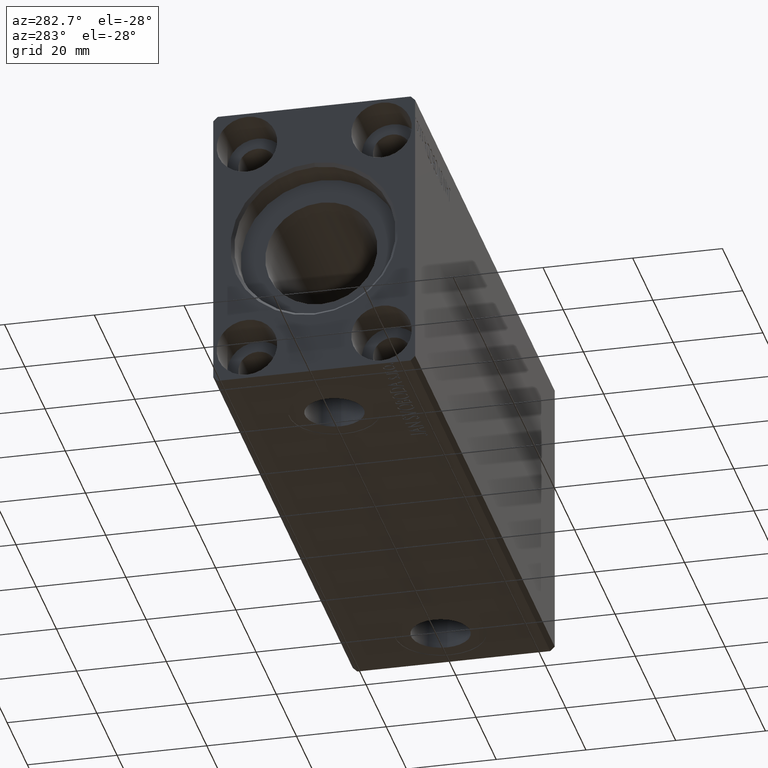
[diagram: clean part render]
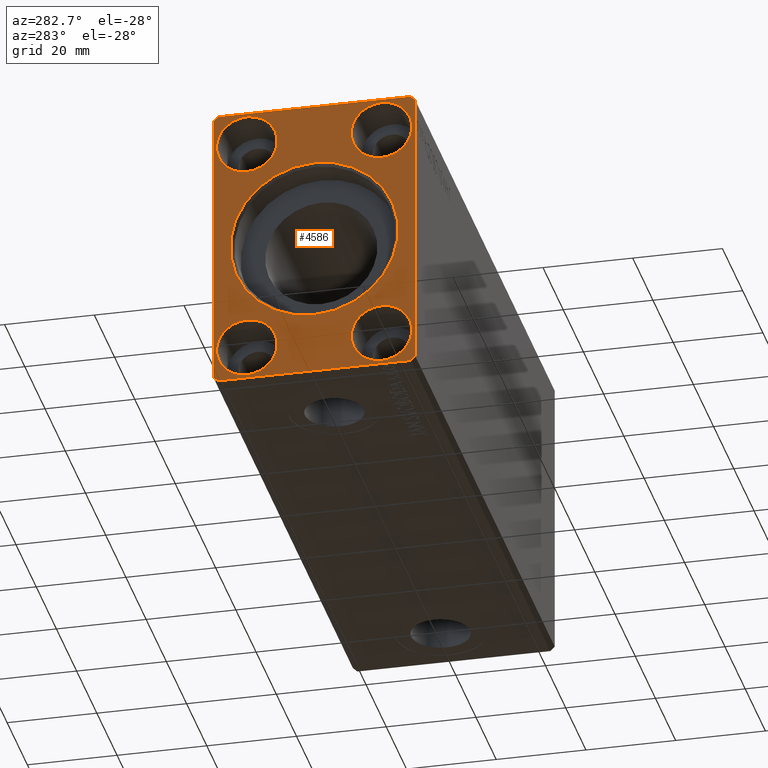
[diagram: same view with one face highlighted and labeled with its STEP entity id]
A machine part, auxiliary view. The second image highlights one B-rep face of the part: STEP entity #4586.
In plain terms, the highlighted planar face has unit normal (1, 0, 0).
Its self-contained STEP definition (entity closure, byte-faithful):
#293 = CARTESIAN_POINT ( 'NONE',  ( 0.000000000000000000, -21.50000000000001776, -32.50000000000000711 ) ) ;
#372 = DIRECTION ( 'NONE',  ( 0.000000000000000000, 0.000000000000000000, 1.000000000000000000 ) ) ;
#426 = LINE ( 'NONE', #39424, #36034 ) ;
#658 = DIRECTION ( 'NONE',  ( 1.000000000000000000, -0.000000000000000000, -0.000000000000000000 ) ) ;
#667 = EDGE_CURVE ( 'NONE', #34315, #23519, #35061, .T. ) ;
#1442 = EDGE_CURVE ( 'NONE', #42013, #17482, #17162, .T. ) ;
#1519 = CARTESIAN_POINT ( 'NONE',  ( 0.000000000000000000, -21.50000000000001421, 32.50000000000000000 ) ) ;
#1570 = LINE ( 'NONE', #40776, #37666 ) ;
#1703 = CARTESIAN_POINT ( 'NONE',  ( 0.000000000000000000, 21.49999999999999645, 32.50000000000000000 ) ) ;
#2021 = EDGE_CURVE ( 'NONE', #8766, #6826, #10322, .T. ) ;
#2063 = VERTEX_POINT ( 'NONE', #293 ) ;
#2259 = EDGE_LOOP ( 'NONE', ( #27924, #8937 ) ) ;
#2990 = EDGE_CURVE ( 'NONE', #9179, #22917, #8030, .T. ) ;
#3190 = DIRECTION ( 'NONE',  ( 1.000000000000000000, -0.000000000000000000, -0.000000000000000000 ) ) ;
#3374 = ORIENTED_EDGE ( 'NONE', *, *, #30129, .T. ) ;
#3428 = ORIENTED_EDGE ( 'NONE', *, *, #12923, .F. ) ;
#3510 = AXIS2_PLACEMENT_3D ( 'NONE', #39263, #9754, #16853 ) ;
#3716 = FACE_BOUND ( 'NONE', #21073, .T. ) ;
#3857 = CARTESIAN_POINT ( 'NONE',  ( 0.000000000000000000, 15.00000000000000000, -25.00000000000000000 ) ) ;
#4049 = CIRCLE ( 'NONE', #39136, 6.749999999999999112 ) ;
#4141 = DIRECTION ( 'NONE',  ( 1.000000000000000000, 0.000000000000000000, 0.000000000000000000 ) ) ;
#4303 = EDGE_CURVE ( 'NONE', #6065, #21740, #10377, .T. ) ;
#4586 = ADVANCED_FACE ( 'NONE', ( #36033, #6526, #3716, #12975, #23745, #23100 ), #26114, .F. ) ;
#4603 = CARTESIAN_POINT ( 'NONE',  ( 0.000000000000000000, 21.49999999999999645, 32.50000000000000000 ) ) ;
#4771 = AXIS2_PLACEMENT_3D ( 'NONE', #17636, #30776, #10128 ) ;
#4838 = EDGE_CURVE ( 'NONE', #11402, #16110, #39807, .T. ) ;
#4899 = VECTOR ( 'NONE', #23424, 1000.000000000000000 ) ;
#5030 = DIRECTION ( 'NONE',  ( 0.000000000000000000, 0.000000000000000000, 1.000000000000000000 ) ) ;
#5242 = CARTESIAN_POINT ( 'NONE',  ( 0.000000000000000000, 15.00000000000000000, -25.00000000000000000 ) ) ;
#5428 = CARTESIAN_POINT ( 'NONE',  ( 0.000000000000000000, -15.00000000000000000, 25.00000000000000000 ) ) ;
#6065 = VERTEX_POINT ( 'NONE', #19241 ) ;
#6147 = ORIENTED_EDGE ( 'NONE', *, *, #11995, .F. ) ;
#6162 = CARTESIAN_POINT ( 'NONE',  ( 0.000000000000000000, -15.00000000000000000, -18.25000000000000355 ) ) ;
#6178 = DIRECTION ( 'NONE',  ( 0.000000000000000000, 1.000000000000000000, 1.613696256722610912E-16 ) ) ;
#6431 = CARTESIAN_POINT ( 'NONE',  ( 0.000000000000000000, -15.00000000000000000, -25.00000000000000000 ) ) ;
#6526 = FACE_BOUND ( 'NONE', #30281, .T. ) ;
#6826 = VERTEX_POINT ( 'NONE', #9663 ) ;
#7707 = AXIS2_PLACEMENT_3D ( 'NONE', #5428, #25438, #38591 ) ;
#8030 = LINE ( 'NONE', #27413, #41287 ) ;
#8046 = CARTESIAN_POINT ( 'NONE',  ( 0.000000000000000000, -15.00000000000000000, 18.24999999999999645 ) ) ;
#8189 = EDGE_CURVE ( 'NONE', #42054, #9179, #31029, .T. ) ;
#8417 = LINE ( 'NONE', #32241, #10579 ) ;
#8766 = VERTEX_POINT ( 'NONE', #27063 ) ;
#8937 = ORIENTED_EDGE ( 'NONE', *, *, #667, .T. ) ;
#9179 = VERTEX_POINT ( 'NONE', #19598 ) ;
#9294 = EDGE_CURVE ( 'NONE', #22917, #2063, #426, .T. ) ;
#9434 = VERTEX_POINT ( 'NONE', #1703 ) ;
#9663 = CARTESIAN_POINT ( 'NONE',  ( 0.000000000000000000, 0.000000000000000000, 18.69999999999999574 ) ) ;
#9754 = DIRECTION ( 'NONE',  ( 1.000000000000000000, 0.000000000000000000, 0.000000000000000000 ) ) ;
#10128 = DIRECTION ( 'NONE',  ( 0.000000000000000000, 0.000000000000000000, -1.000000000000000000 ) ) ;
#10297 = CARTESIAN_POINT ( 'NONE',  ( 0.000000000000000000, 22.49999999999999645, -31.50000000000000000 ) ) ;
#10322 = CIRCLE ( 'NONE', #31659, 18.69999999999999574 ) ;
#10364 = DIRECTION ( 'NONE',  ( 0.000000000000000000, 0.000000000000000000, -1.000000000000000000 ) ) ;
#10377 = CIRCLE ( 'NONE', #42036, 6.749999999999992006 ) ;
#10579 = VECTOR ( 'NONE', #6178, 1000.000000000000000 ) ;
#10883 = DIRECTION ( 'NONE',  ( 0.000000000000000000, 0.000000000000000000, -1.000000000000000000 ) ) ;
#11402 = VERTEX_POINT ( 'NONE', #15857 ) ;
#11583 = ORIENTED_EDGE ( 'NONE', *, *, #41092, .F. ) ;
#11834 = AXIS2_PLACEMENT_3D ( 'NONE', #40757, #4141, #24812 ) ;
#11995 = EDGE_CURVE ( 'NONE', #31665, #11402, #1570, .T. ) ;
#12101 = LINE ( 'NONE', #41623, #30584 ) ;
#12192 = CARTESIAN_POINT ( 'NONE',  ( 0.000000000000000000, 15.00000000000000000, 31.75000000000001421 ) ) ;
#12923 = EDGE_CURVE ( 'NONE', #9434, #42054, #24854, .T. ) ;
#12975 = FACE_OUTER_BOUND ( 'NONE', #39380, .T. ) ;
#13315 = VECTOR ( 'NONE', #14656, 1000.000000000000114 ) ;
#13562 = DIRECTION ( 'NONE',  ( 0.000000000000000000, 0.7071067811865451302, -0.7071067811865500152 ) ) ;
#14205 = ORIENTED_EDGE ( 'NONE', *, *, #36123, .F. ) ;
#14656 = DIRECTION ( 'NONE',  ( 0.000000000000000000, -0.7071067811865474617, -0.7071067811865474617 ) ) ;
#14741 = CIRCLE ( 'NONE', #25084, 6.750000000000015987 ) ;
#15857 = CARTESIAN_POINT ( 'NONE',  ( 0.000000000000000000, 22.49999999999999645, -31.50000000000000000 ) ) ;
#16110 = VERTEX_POINT ( 'NONE', #23702 ) ;
#16264 = EDGE_CURVE ( 'NONE', #17482, #42013, #4049, .T. ) ;
#16408 = ORIENTED_EDGE ( 'NONE', *, *, #25642, .F. ) ;
#16582 = ORIENTED_EDGE ( 'NONE', *, *, #31839, .F. ) ;
#16725 = CARTESIAN_POINT ( 'NONE',  ( 0.000000000000000000, -15.00000000000000000, -25.00000000000000000 ) ) ;
#16853 = DIRECTION ( 'NONE',  ( 0.000000000000000000, 0.000000000000000000, -1.000000000000000000 ) ) ;
#17162 = CIRCLE ( 'NONE', #39214, 6.749999999999999112 ) ;
#17482 = VERTEX_POINT ( 'NONE', #6162 ) ;
#17634 = CARTESIAN_POINT ( 'NONE',  ( 0.000000000000000000, -21.50000000000001421, 32.50000000000000000 ) ) ;
#17636 = CARTESIAN_POINT ( 'NONE',  ( 0.000000000000000000, 15.00000000000000000, 25.00000000000000000 ) ) ;
#18424 = CARTESIAN_POINT ( 'NONE',  ( 0.000000000000000000, -15.00000000000000000, 31.75000000000000711 ) ) ;
#18649 = VERTEX_POINT ( 'NONE', #18424 ) ;
#18790 = DIRECTION ( 'NONE',  ( 0.000000000000000000, 0.7071067811865474617, 0.7071067811865474617 ) ) ;
#19042 = CARTESIAN_POINT ( 'NONE',  ( 0.000000000000000000, 0.000000000000000000, 0.000000000000000000 ) ) ;
#19241 = CARTESIAN_POINT ( 'NONE',  ( 0.000000000000000000, 15.00000000000000000, -31.74999999999999289 ) ) ;
#19598 = CARTESIAN_POINT ( 'NONE',  ( 0.000000000000000000, -22.50000000000001776, 31.50000000000000000 ) ) ;
#19743 = EDGE_LOOP ( 'NONE', ( #16582, #16408 ) ) ;
#21073 = EDGE_LOOP ( 'NONE', ( #3374, #27117 ) ) ;
#21715 = ORIENTED_EDGE ( 'NONE', *, *, #4303, .F. ) ;
#21740 = VERTEX_POINT ( 'NONE', #22280 ) ;
#21790 = DIRECTION ( 'NONE',  ( 0.000000000000000000, -0.7071067811865474617, 0.7071067811865474617 ) ) ;
#21904 = VERTEX_POINT ( 'NONE', #8046 ) ;
#22280 = CARTESIAN_POINT ( 'NONE',  ( 0.000000000000000000, 15.00000000000000000, -18.25000000000001066 ) ) ;
#22870 = EDGE_LOOP ( 'NONE', ( #26796, #27931 ) ) ;
#22917 = VERTEX_POINT ( 'NONE', #25471 ) ;
#23092 = ORIENTED_EDGE ( 'NONE', *, *, #9294, .F. ) ;
#23100 = FACE_BOUND ( 'NONE', #2259, .T. ) ;
#23424 = DIRECTION ( 'NONE',  ( 0.000000000000000000, 0.000000000000000000, 1.000000000000000000 ) ) ;
#23519 = VERTEX_POINT ( 'NONE', #12192 ) ;
#23542 = CIRCLE ( 'NONE', #28382, 6.750000000000006217 ) ;
#23702 = CARTESIAN_POINT ( 'NONE',  ( 0.000000000000000000, 22.49999999999999645, 31.50000000000000000 ) ) ;
#23745 = FACE_BOUND ( 'NONE', #22870, .T. ) ;
#24099 = CARTESIAN_POINT ( 'NONE',  ( 0.000000000000000000, 21.49999999999999645, -32.50000000000000000 ) ) ;
#24430 = AXIS2_PLACEMENT_3D ( 'NONE', #3857, #30141, #30345 ) ;
#24812 = DIRECTION ( 'NONE',  ( 0.000000000000000000, 0.000000000000000000, -1.000000000000000000 ) ) ;
#24854 = LINE ( 'NONE', #4603, #34927 ) ;
#25084 = AXIS2_PLACEMENT_3D ( 'NONE', #26726, #658, #10364 ) ;
#25438 = DIRECTION ( 'NONE',  ( -1.000000000000000000, 0.000000000000000000, 0.000000000000000000 ) ) ;
#25471 = CARTESIAN_POINT ( 'NONE',  ( 0.000000000000000000, -22.50000000000001421, -31.50000000000000711 ) ) ;
#25642 = EDGE_CURVE ( 'NONE', #21904, #18649, #38676, .T. ) ;
#26050 = ORIENTED_EDGE ( 'NONE', *, *, #2990, .F. ) ;
#26114 = PLANE ( 'NONE',  #3510 ) ;
#26136 = DIRECTION ( 'NONE',  ( 1.000000000000000000, 0.000000000000000000, 0.000000000000000000 ) ) ;
#26219 = ORIENTED_EDGE ( 'NONE', *, *, #8189, .F. ) ;
#26726 = CARTESIAN_POINT ( 'NONE',  ( 0.000000000000000000, 15.00000000000000000, 25.00000000000000000 ) ) ;
#26796 = ORIENTED_EDGE ( 'NONE', *, *, #16264, .T. ) ;
#27063 = CARTESIAN_POINT ( 'NONE',  ( 0.000000000000000000, 2.290089514405549716E-15, -18.69999999999999574 ) ) ;
#27117 = ORIENTED_EDGE ( 'NONE', *, *, #2021, .T. ) ;
#27413 = CARTESIAN_POINT ( 'NONE',  ( 0.000000000000000000, -22.50000000000001776, 31.50000000000000000 ) ) ;
#27626 = DIRECTION ( 'NONE',  ( 0.000000000000000000, 5.507058653894625853E-17, -1.000000000000000000 ) ) ;
#27924 = ORIENTED_EDGE ( 'NONE', *, *, #38998, .T. ) ;
#27931 = ORIENTED_EDGE ( 'NONE', *, *, #1442, .T. ) ;
#28382 = AXIS2_PLACEMENT_3D ( 'NONE', #30513, #36975, #372 ) ;
#29437 = DIRECTION ( 'NONE',  ( 1.000000000000000000, -0.000000000000000000, -0.000000000000000000 ) ) ;
#30129 = EDGE_CURVE ( 'NONE', #6826, #8766, #40040, .T. ) ;
#30141 = DIRECTION ( 'NONE',  ( -1.000000000000000000, 0.000000000000000000, 0.000000000000000000 ) ) ;
#30281 = EDGE_LOOP ( 'NONE', ( #11583, #21715 ) ) ;
#30345 = DIRECTION ( 'NONE',  ( 0.000000000000000000, 0.000000000000000000, 1.000000000000000000 ) ) ;
#30513 = CARTESIAN_POINT ( 'NONE',  ( 0.000000000000000000, -15.00000000000000000, 25.00000000000000000 ) ) ;
#30584 = VECTOR ( 'NONE', #21790, 1000.000000000000114 ) ;
#30677 = CARTESIAN_POINT ( 'NONE',  ( 0.000000000000000000, 15.00000000000000000, 18.24999999999998579 ) ) ;
#30776 = DIRECTION ( 'NONE',  ( 1.000000000000000000, -0.000000000000000000, -0.000000000000000000 ) ) ;
#30919 = ORIENTED_EDGE ( 'NONE', *, *, #4838, .F. ) ;
#31029 = LINE ( 'NONE', #1519, #13315 ) ;
#31515 = DIRECTION ( 'NONE',  ( -1.000000000000000000, 0.000000000000000000, 0.000000000000000000 ) ) ;
#31659 = AXIS2_PLACEMENT_3D ( 'NONE', #19042, #26136, #32386 ) ;
#31665 = VERTEX_POINT ( 'NONE', #24099 ) ;
#31839 = EDGE_CURVE ( 'NONE', #18649, #21904, #23542, .T. ) ;
#32241 = CARTESIAN_POINT ( 'NONE',  ( 0.000000000000000000, -21.50000000000001776, -32.50000000000000711 ) ) ;
#32386 = DIRECTION ( 'NONE',  ( 0.000000000000000000, 0.000000000000000000, -1.000000000000000000 ) ) ;
#34315 = VERTEX_POINT ( 'NONE', #30677 ) ;
#34552 = DIRECTION ( 'NONE',  ( 0.000000000000000000, -1.000000000000000000, 0.000000000000000000 ) ) ;
#34882 = ORIENTED_EDGE ( 'NONE', *, *, #38825, .F. ) ;
#34927 = VECTOR ( 'NONE', #34552, 1000.000000000000000 ) ;
#35061 = CIRCLE ( 'NONE', #4771, 6.750000000000015987 ) ;
#36033 = FACE_BOUND ( 'NONE', #19743, .T. ) ;
#36034 = VECTOR ( 'NONE', #13562, 1000.000000000000114 ) ;
#36123 = EDGE_CURVE ( 'NONE', #2063, #31665, #8417, .T. ) ;
#36975 = DIRECTION ( 'NONE',  ( -1.000000000000000000, 0.000000000000000000, 0.000000000000000000 ) ) ;
#37498 = CIRCLE ( 'NONE', #24430, 6.749999999999992006 ) ;
#37666 = VECTOR ( 'NONE', #18790, 1000.000000000000114 ) ;
#38591 = DIRECTION ( 'NONE',  ( 0.000000000000000000, 0.000000000000000000, 1.000000000000000000 ) ) ;
#38676 = CIRCLE ( 'NONE', #7707, 6.750000000000006217 ) ;
#38825 = EDGE_CURVE ( 'NONE', #16110, #9434, #12101, .T. ) ;
#38998 = EDGE_CURVE ( 'NONE', #23519, #34315, #14741, .T. ) ;
#39136 = AXIS2_PLACEMENT_3D ( 'NONE', #6431, #3190, #10883 ) ;
#39214 = AXIS2_PLACEMENT_3D ( 'NONE', #16725, #29437, #42571 ) ;
#39263 = CARTESIAN_POINT ( 'NONE',  ( 0.000000000000000000, 0.000000000000000000, 0.000000000000000000 ) ) ;
#39380 = EDGE_LOOP ( 'NONE', ( #34882, #30919, #6147, #14205, #23092, #26050, #26219, #3428 ) ) ;
#39424 = CARTESIAN_POINT ( 'NONE',  ( 0.000000000000000000, -22.50000000000001421, -31.50000000000000711 ) ) ;
#39807 = LINE ( 'NONE', #10297, #4899 ) ;
#40040 = CIRCLE ( 'NONE', #11834, 18.69999999999999574 ) ;
#40757 = CARTESIAN_POINT ( 'NONE',  ( 0.000000000000000000, 0.000000000000000000, 0.000000000000000000 ) ) ;
#40776 = CARTESIAN_POINT ( 'NONE',  ( 0.000000000000000000, 21.49999999999999645, -32.50000000000000000 ) ) ;
#40903 = CARTESIAN_POINT ( 'NONE',  ( 0.000000000000000000, -15.00000000000000000, -31.75000000000000000 ) ) ;
#41092 = EDGE_CURVE ( 'NONE', #21740, #6065, #37498, .T. ) ;
#41287 = VECTOR ( 'NONE', #27626, 1000.000000000000000 ) ;
#41623 = CARTESIAN_POINT ( 'NONE',  ( 0.000000000000000000, 22.49999999999999645, 31.50000000000000000 ) ) ;
#42013 = VERTEX_POINT ( 'NONE', #40903 ) ;
#42036 = AXIS2_PLACEMENT_3D ( 'NONE', #5242, #31515, #5030 ) ;
#42054 = VERTEX_POINT ( 'NONE', #17634 ) ;
#42571 = DIRECTION ( 'NONE',  ( 0.000000000000000000, 0.000000000000000000, -1.000000000000000000 ) ) ;